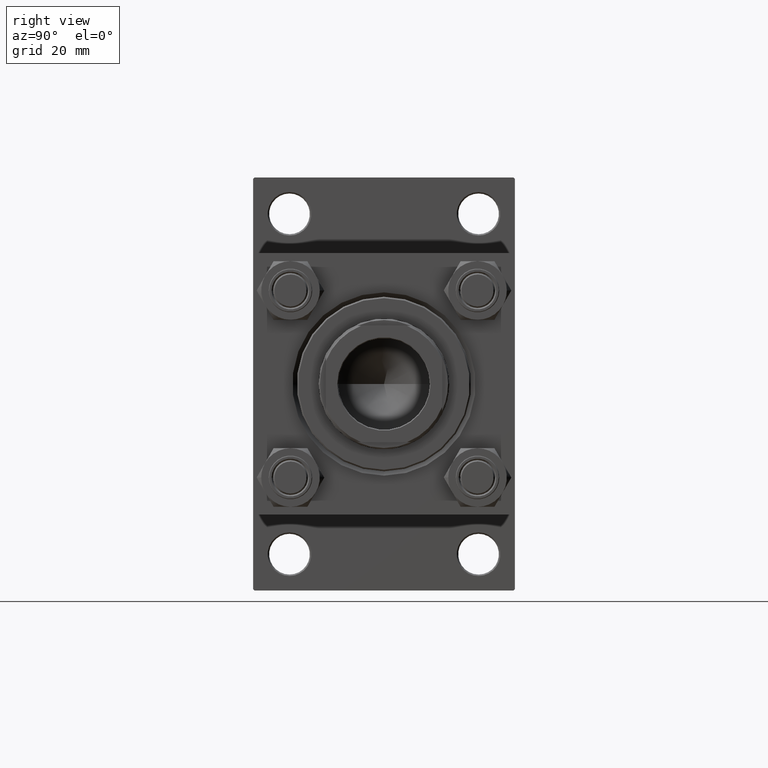
[diagram: clean part render]
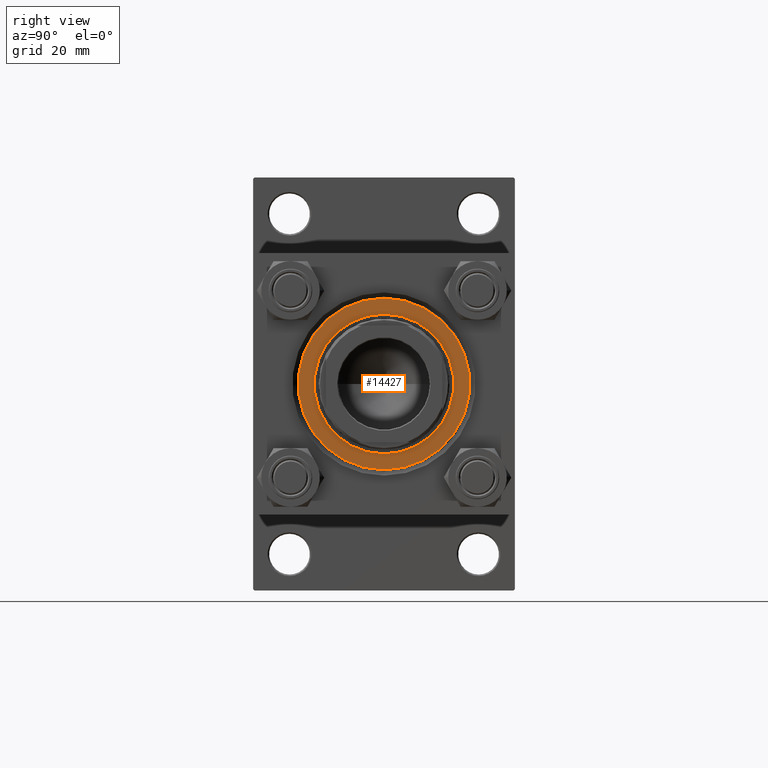
[diagram: same view with one face highlighted and labeled with its STEP entity id]
A machine part, right view. The second image highlights one B-rep face of the part: STEP entity #14427.
In plain terms, the highlighted planar face has unit normal (1, 0, 0).
Its self-contained STEP definition (entity closure, byte-faithful):
#979 = DIRECTION ( 'NONE',  ( 0.000000000000000000, 0.000000000000000000, 1.000000000000000000 ) ) ;
#2696 = VERTEX_POINT ( 'NONE', #38729 ) ;
#3776 = AXIS2_PLACEMENT_3D ( 'NONE', #44430, #32821, #14594 ) ;
#5396 = CIRCLE ( 'NONE', #3776, 24.00000000000000355 ) ;
#5501 = DIRECTION ( 'NONE',  ( 1.000000000000000000, 0.000000000000000000, 0.000000000000000000 ) ) ;
#7585 = CARTESIAN_POINT ( 'NONE',  ( -29.50000000000000000, 0.000000000000000000, 41.70000000000000284 ) ) ;
#8069 = CARTESIAN_POINT ( 'NONE',  ( 0.000000000000000000, 0.000000000000000000, 41.70000000000000284 ) ) ;
#8647 = AXIS2_PLACEMENT_3D ( 'NONE', #28945, #9719, #21329 ) ;
#9719 = DIRECTION ( 'NONE',  ( 0.000000000000000000, 0.000000000000000000, 1.000000000000000000 ) ) ;
#10019 = DIRECTION ( 'NONE',  ( 0.000000000000000000, 0.000000000000000000, 1.000000000000000000 ) ) ;
#10280 = AXIS2_PLACEMENT_3D ( 'NONE', #13569, #10019, #5501 ) ;
#11842 = FACE_OUTER_BOUND ( 'NONE', #31373, .T. ) ;
#11859 = VERTEX_POINT ( 'NONE', #44767 ) ;
#12466 = ORIENTED_EDGE ( 'NONE', *, *, #14557, .T. ) ;
#13569 = CARTESIAN_POINT ( 'NONE',  ( 0.000000000000000000, 0.000000000000000000, 41.70000000000000284 ) ) ;
#14427 = ADVANCED_FACE ( 'NONE', ( #27535, #11842 ), #34838, .T. ) ;
#14557 = EDGE_CURVE ( 'NONE', #11859, #46009, #17572, .T. ) ;
#14594 = DIRECTION ( 'NONE',  ( 1.000000000000000000, 0.000000000000000000, 0.000000000000000000 ) ) ;
#15924 = CIRCLE ( 'NONE', #8647, 29.50000000000000000 ) ;
#17572 = CIRCLE ( 'NONE', #10280, 29.50000000000000000 ) ;
#17868 = ORIENTED_EDGE ( 'NONE', *, *, #26180, .T. ) ;
#21329 = DIRECTION ( 'NONE',  ( 1.000000000000000000, 0.000000000000000000, 0.000000000000000000 ) ) ;
#25814 = ORIENTED_EDGE ( 'NONE', *, *, #36821, .F. ) ;
#26180 = EDGE_CURVE ( 'NONE', #46009, #11859, #15924, .T. ) ;
#27275 = DIRECTION ( 'NONE',  ( 1.000000000000000000, 0.000000000000000000, -0.000000000000000000 ) ) ;
#27535 = FACE_BOUND ( 'NONE', #29700, .T. ) ;
#28920 = AXIS2_PLACEMENT_3D ( 'NONE', #30716, #46097, #46845 ) ;
#28945 = CARTESIAN_POINT ( 'NONE',  ( 0.000000000000000000, 0.000000000000000000, 41.70000000000000284 ) ) ;
#29647 = EDGE_CURVE ( 'NONE', #30742, #2696, #5396, .T. ) ;
#29700 = EDGE_LOOP ( 'NONE', ( #34959, #25814 ) ) ;
#30716 = CARTESIAN_POINT ( 'NONE',  ( 0.000000000000000000, 0.000000000000000000, 41.70000000000000284 ) ) ;
#30742 = VERTEX_POINT ( 'NONE', #48460 ) ;
#31373 = EDGE_LOOP ( 'NONE', ( #17868, #12466 ) ) ;
#32821 = DIRECTION ( 'NONE',  ( 0.000000000000000000, 0.000000000000000000, 1.000000000000000000 ) ) ;
#34838 = PLANE ( 'NONE',  #38546 ) ;
#34959 = ORIENTED_EDGE ( 'NONE', *, *, #29647, .F. ) ;
#36821 = EDGE_CURVE ( 'NONE', #2696, #30742, #44219, .T. ) ;
#38546 = AXIS2_PLACEMENT_3D ( 'NONE', #8069, #979, #27275 ) ;
#38729 = CARTESIAN_POINT ( 'NONE',  ( -24.00000000000000355, 2.939152317953648289E-15, 41.70000000000000284 ) ) ;
#44219 = CIRCLE ( 'NONE', #28920, 24.00000000000000355 ) ;
#44430 = CARTESIAN_POINT ( 'NONE',  ( 0.000000000000000000, 0.000000000000000000, 41.70000000000000284 ) ) ;
#44767 = CARTESIAN_POINT ( 'NONE',  ( 29.50000000000000000, 3.643324227463375391E-15, 41.70000000000000284 ) ) ;
#46009 = VERTEX_POINT ( 'NONE', #7585 ) ;
#46097 = DIRECTION ( 'NONE',  ( 0.000000000000000000, 0.000000000000000000, 1.000000000000000000 ) ) ;
#46845 = DIRECTION ( 'NONE',  ( 1.000000000000000000, 0.000000000000000000, 0.000000000000000000 ) ) ;
#48460 = CARTESIAN_POINT ( 'NONE',  ( 24.00000000000000355, 0.000000000000000000, 41.70000000000000284 ) ) ;